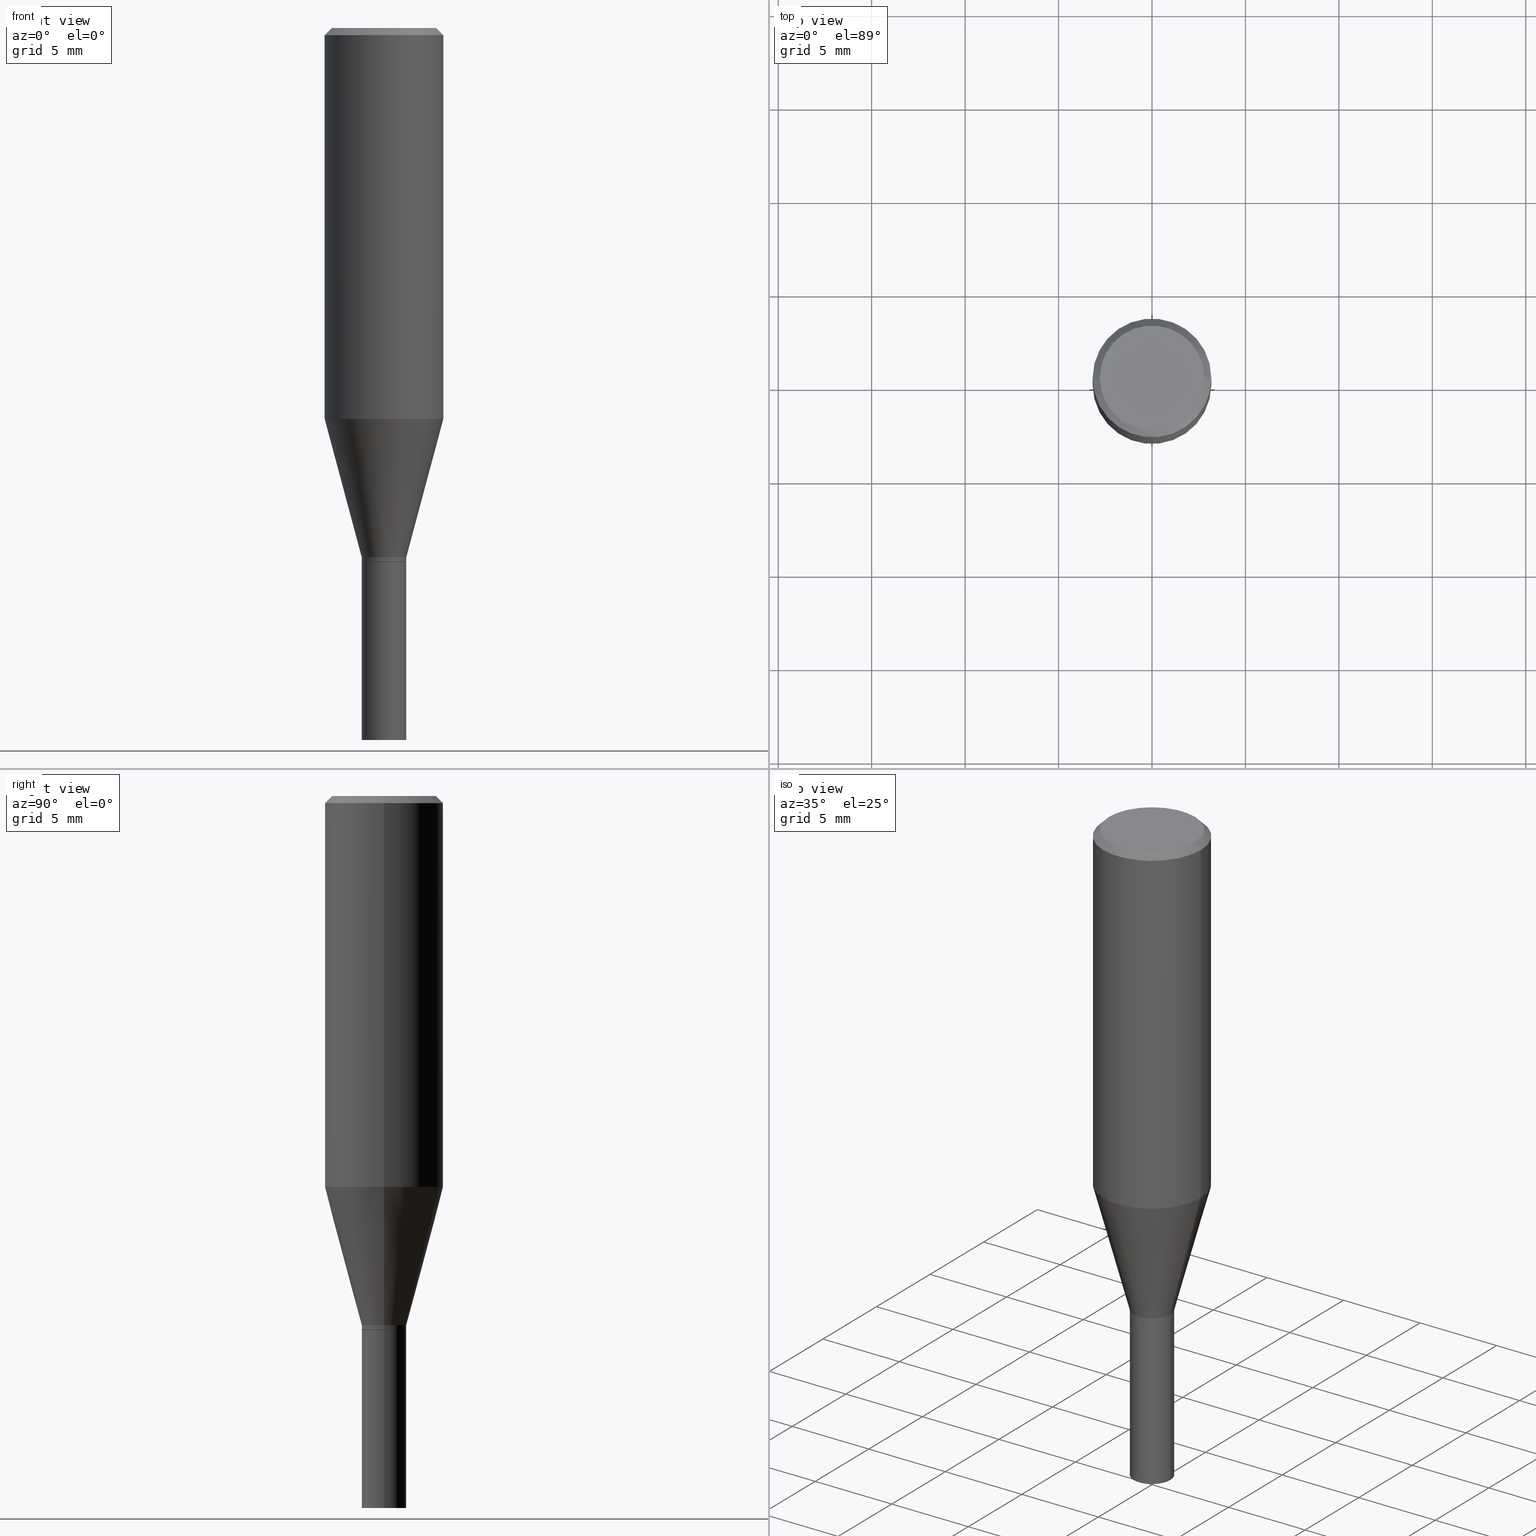
[diagram: canonical four-view strip — front | top / right | iso, engineering-drawing reading convention]
A machine part, canonical four-view strip (front | top / right | iso — engineering-drawing reading convention). The complete STEP part file that produces these views, byte-faithful:
ISO-10303-21;
HEADER;
FILE_DESCRIPTION (( 'STEP AP203' ),
    '1' );
FILE_NAME ('05298.STEP',
    '2024-03-14T18:06:03',
    ( '' ),
    ( '' ),
    'SwSTEP 2.0',
    'SolidWorks 2023',
    '' );
FILE_SCHEMA (( 'CONFIG_CONTROL_DESIGN' ));
ENDSEC;

DATA;
#1 = LINE ( 'NONE', #287, #114 ) ;
#2 = CYLINDRICAL_SURFACE ( 'NONE', #359, 0.1250000000000000000 ) ;
#3 = COORDINATED_UNIVERSAL_TIME_OFFSET ( 5, 0, .BEHIND. ) ;
#4 = CARTESIAN_POINT ( 'NONE',  ( -0.1249999999999999861, -1.987150146016147440E-15, -0.8235268319288721051 ) ) ;
#5 = CIRCLE ( 'NONE', #179, 0.1250000000000000000 ) ;
#6 = EDGE_CURVE ( 'NONE', #79, #215, #272, .T. ) ;
#7 = CARTESIAN_POINT ( 'NONE',  ( 2.751152406958279232E-29, -3.927916506198539224E-15, -1.125000000000000222 ) ) ;
#8 = EDGE_CURVE ( 'NONE', #34, #416, #454, .T. ) ;
#9 = DIRECTION ( 'NONE',  ( 1.000000000000000000, -6.982962677686266711E-15, 0.000000000000000000 ) ) ;
#10 = PERSON ( 'UNSPECIFIED', 'UNSPECIFIED', 'UNSPECIFIED', ('UNSPECIFIED'), ('UNSPECIFIED'), ('UNSPECIFIED') ) ;
#11 = DIRECTION ( 'NONE',  ( 1.000000000000000000, -6.982962677686266711E-15, 0.000000000000000000 ) ) ;
#12 = DESIGN_CONTEXT ( 'detailed design', #158, 'design' ) ;
#13 = CIRCLE ( 'NONE', #288, 0.1100000000000000006 ) ;
#14 = VERTEX_POINT ( 'NONE', #205 ) ;
#15 = ADVANCED_FACE ( 'NONE', ( #234 ), #153, .T. ) ;
#16 = AXIS2_PLACEMENT_3D ( 'NONE', #169, #165, #236 ) ;
#17 = CARTESIAN_POINT ( 'NONE',  ( 0.000000000000000000, 0.000000000000000000, 0.000000000000000000 ) ) ;
#18 = CARTESIAN_POINT ( 'NONE',  ( 0.1249999999999999861, -3.748198900427056011E-15, -0.8235268319288721051 ) ) ;
#19 = DIRECTION ( 'NONE',  ( -2.445468806185136597E-29, 3.491481338843145583E-15, 1.000000000000000000 ) ) ;
#20 = DIRECTION ( 'NONE',  ( -1.000000000000000000, 6.982962677686265922E-15, -4.876176775795935793E-29 ) ) ;
#21 = CARTESIAN_POINT ( 'NONE',  ( -0.04690000000000005276, 3.332445430714873620E-16, -2.306980557329553054E-30 ) ) ;
#22 = CARTESIAN_POINT ( 'NONE',  ( 2.751152406958279232E-29, -3.927916506198539224E-15, -1.125000000000000222 ) ) ;
#23 = ORIENTED_EDGE ( 'NONE', *, *, #333, .F. ) ;
#24 = ORIENTED_EDGE ( 'NONE', *, *, #262, .T. ) ;
#25 = AXIS2_PLACEMENT_3D ( 'NONE', #94, #60, #309 ) ;
#26 = CARTESIAN_POINT ( 'NONE',  ( -0.04639999999999999680, -3.595575449631741560E-15, -1.125000000000000222 ) ) ;
#27 = DIRECTION ( 'NONE',  ( 1.000000000000000000, -6.982962677686268288E-15, 0.000000000000000000 ) ) ;
#28 = FACE_OUTER_BOUND ( 'NONE', #267, .T. ) ;
#29 = DIRECTION ( 'NONE',  ( -2.445468806185136597E-29, 3.491481338843145583E-15, 1.000000000000000000 ) ) ;
#30 = EDGE_CURVE ( 'NONE', #416, #337, #449, .T. ) ;
#31 = VECTOR ( 'NONE', #128, 39.37007874015748143 ) ;
#32 = DIRECTION ( 'NONE',  ( -0.2588190451025215166, 5.211531920934551042E-15, 0.9659258262890679791 ) ) ;
#33 = EDGE_CURVE ( 'NONE', #459, #207, #13, .T. ) ;
#34 = VERTEX_POINT ( 'NONE', #26 ) ;
#35 = APPLICATION_PROTOCOL_DEFINITION ( 'international standard', 'config_control_design', 1994, #378 ) ;
#36 = APPROVAL_DATE_TIME ( #393, #51 ) ;
#37 = ORIENTED_EDGE ( 'NONE', *, *, #260, .T. ) ;
#38 = ORIENTED_EDGE ( 'NONE', *, *, #375, .T. ) ;
#39 = VECTOR ( 'NONE', #130, 39.37007874015748143 ) ;
#40 = APPROVAL_ROLE ( '' ) ;
#41 = CARTESIAN_POINT ( 'NONE',  ( 0.000000000000000000, 0.000000000000000000, 0.000000000000000000 ) ) ;
#42 = COORDINATED_UNIVERSAL_TIME_OFFSET ( 5, 0, .BEHIND. ) ;
#43 = CARTESIAN_POINT ( 'NONE',  ( 7.681258945454893776E-16, 0.1100000000000000006, -1.545800150669300521E-16 ) ) ;
#44 = CALENDAR_DATE ( 2024, 14, 3 ) ;
#45 = AXIS2_PLACEMENT_3D ( 'NONE', #134, #392, #77 ) ;
#46 =( GEOMETRIC_REPRESENTATION_CONTEXT ( 3 ) GLOBAL_UNCERTAINTY_ASSIGNED_CONTEXT ( ( #104 ) ) GLOBAL_UNIT_ASSIGNED_CONTEXT ( ( #417, #135, #211 ) ) REPRESENTATION_CONTEXT ( 'NONE', 'WORKASPACE' ) );
#47 = DIRECTION ( 'NONE',  ( -0.7071067811865656694, 7.493145998870420424E-15, 0.7071067811865294761 ) ) ;
#48 = ORIENTED_EDGE ( 'NONE', *, *, #136, .F. ) ;
#49 = EDGE_CURVE ( 'NONE', #34, #362, #1, .T. ) ;
#50 = DIRECTION ( 'NONE',  ( 1.000000000000000000, -6.982962677686265922E-15, 4.876176775795935793E-29 ) ) ;
#51 = APPROVAL ( #427, 'UNSPECIFIED' ) ;
#52 = DIRECTION ( 'NONE',  ( -2.445468806185136597E-29, 3.491481338843145583E-15, 1.000000000000000000 ) ) ;
#53 = DIRECTION ( 'NONE',  ( 1.000000000000000000, -6.982962677686266711E-15, 0.000000000000000000 ) ) ;
#54 = AXIS2_PLACEMENT_3D ( 'NONE', #152, #341, #259 ) ;
#55 = FACE_OUTER_BOUND ( 'NONE', #432, .T. ) ;
#56 = EDGE_CURVE ( 'NONE', #301, #412, #255, .T. ) ;
#57 = CARTESIAN_POINT ( 'NONE',  ( 0.04639999999999999680, -4.251925974443182119E-15, -1.125000000000000222 ) ) ;
#58 = LINE ( 'NONE', #385, #360 ) ;
#59 = ORIENTED_EDGE ( 'NONE', *, *, #49, .T. ) ;
#60 = DIRECTION ( 'NONE',  ( -2.438088387897960049E-29, 3.491481338843145188E-15, 1.000000000000000000 ) ) ;
#61 = CARTESIAN_POINT ( 'NONE',  ( -0.1250000000000000000, 8.881784197001252323E-16, -6.148668862818632227E-30 ) ) ;
#62 = APPROVAL_PERSON_ORGANIZATION ( #107, #418, #314 ) ;
#63 = CC_DESIGN_APPROVAL ( #464, ( #88 ) ) ;
#64 = CARTESIAN_POINT ( 'NONE',  ( 0.04689999999999999725, -4.255417455782025127E-15, -1.125000000000000222 ) ) ;
#65 = CARTESIAN_POINT ( 'NONE',  ( 0.000000000000000000, 0.000000000000000000, 0.000000000000000000 ) ) ;
#66 = ORIENTED_EDGE ( 'NONE', *, *, #196, .T. ) ;
#67 = EDGE_CURVE ( 'NONE', #466, #210, #80, .T. ) ;
#68 = ORIENTED_EDGE ( 'NONE', *, *, #136, .T. ) ;
#69 = AXIS2_PLACEMENT_3D ( 'NONE', #156, #409, #154 ) ;
#70 = DATE_TIME_ROLE ( 'classification_date' ) ;
#71 = ORIENTED_EDGE ( 'NONE', *, *, #244, .F. ) ;
#72 = EDGE_CURVE ( 'NONE', #301, #466, #253, .T. ) ;
#73 = ADVANCED_FACE ( 'NONE', ( #331 ), #246, .T. ) ;
#74 = PERSON_AND_ORGANIZATION ( #10, #167 ) ;
#75 = APPROVAL_STATUS ( 'not_yet_approved' ) ;
#76 = AXIS2_PLACEMENT_3D ( 'NONE', #414, #170, #168 ) ;
#77 = DIRECTION ( 'NONE',  ( 1.000000000000000000, -6.982962677686266711E-15, 0.000000000000000000 ) ) ;
#78 = DATE_TIME_ROLE ( 'creation_date' ) ;
#79 = VERTEX_POINT ( 'NONE', #4 ) ;
#80 = LINE ( 'NONE', #222, #166 ) ;
#81 = ORIENTED_EDGE ( 'NONE', *, *, #119, .F. ) ;
#82 = AXIS2_PLACEMENT_3D ( 'NONE', #297, #358, #93 ) ;
#83 = CIRCLE ( 'NONE', #76, 0.04690000000000005970 ) ;
#84 = PLANE ( 'NONE',  #212 ) ;
#85 = ORIENTED_EDGE ( 'NONE', *, *, #354, .F. ) ;
#86 = CARTESIAN_POINT ( 'NONE',  ( 3.668203209277705088E-31, -5.237222008264718399E-17, -0.01499999999999999944 ) ) ;
#87 = LINE ( 'NONE', #295, #311 ) ;
#88 = PRODUCT_DEFINITION ( 'UNKNOWN', '', #294, #12 ) ;
#89 = CIRCLE ( 'NONE', #115, 0.1100000000000000006 ) ;
#90 = DIRECTION ( 'NONE',  ( -2.445468806185136597E-29, 3.491481338843145583E-15, 1.000000000000000000 ) ) ;
#91 = ORIENTED_EDGE ( 'NONE', *, *, #140, .F. ) ;
#92 = ORIENTED_EDGE ( 'NONE', *, *, #196, .F. ) ;
#93 = DIRECTION ( 'NONE',  ( 1.000000000000000000, -6.982962677686266711E-15, 0.000000000000000000 ) ) ;
#94 = CARTESIAN_POINT ( 'NONE',  ( 2.751152406958279232E-29, -3.927916506198539224E-15, -1.125000000000000222 ) ) ;
#95 = VERTEX_POINT ( 'NONE', #429 ) ;
#96 = DIRECTION ( 'NONE',  ( -2.445468806185136877E-29, 3.491481338843145188E-15, 1.000000000000000000 ) ) ;
#97 = CONICAL_SURFACE ( 'NONE', #129, 0.04639999999999999680, 0.7853981633974739252 ) ;
#98 = LOCAL_TIME ( 14, 6, 3.000000000000000000, #42 ) ;
#99 = ORIENTED_EDGE ( 'NONE', *, *, #140, .T. ) ;
#100 = CARTESIAN_POINT ( 'NONE',  ( 0.04690000000000005276, -4.220502642393594266E-15, -1.115000000000000213 ) ) ;
#101 = ORIENTED_EDGE ( 'NONE', *, *, #67, .T. ) ;
#102 = DIRECTION ( 'NONE',  ( -2.445468806185136597E-29, 3.491481338843145583E-15, 1.000000000000000000 ) ) ;
#103 = DATE_AND_TIME ( #326, #98 ) ;
#104 = UNCERTAINTY_MEASURE_WITH_UNIT (LENGTH_MEASURE( 1.000000000000000082E-05 ), #417, 'distance_accuracy_value', 'NONE');
#105 = ADVANCED_FACE ( 'NONE', ( #404 ), #97, .T. ) ;
#106 = CONICAL_SURFACE ( 'NONE', #425, 0.04690000000000005276, 0.2617993877991502405 ) ;
#107 = PERSON_AND_ORGANIZATION ( #10, #167 ) ;
#108 = VERTEX_POINT ( 'NONE', #220 ) ;
#109 = APPROVAL_ROLE ( '' ) ;
#110 = ORIENTED_EDGE ( 'NONE', *, *, #364, .T. ) ;
#111 = ADVANCED_BREP_SHAPE_REPRESENTATION ( '05298', ( #422, #117, #304 ), #46 ) ;
#112 = ORIENTED_EDGE ( 'NONE', *, *, #6, .F. ) ;
#113 = CYLINDRICAL_SURFACE ( 'NONE', #399, 0.04690000000000005276 ) ;
#114 = VECTOR ( 'NONE', #47, 39.37007874015748143 ) ;
#115 = AXIS2_PLACEMENT_3D ( 'NONE', #448, #102, #133 ) ;
#116 = CARTESIAN_POINT ( 'NONE',  ( 3.668203209277705088E-31, -5.237222008264718399E-17, -0.01499999999999999944 ) ) ;
#117 = MANIFOLD_SOLID_BREP ( 'Body-Move/Copy2[2]', #433 ) ;
#118 = DIRECTION ( 'NONE',  ( 2.445468806185136597E-29, -3.491481338843145583E-15, -1.000000000000000000 ) ) ;
#119 = EDGE_CURVE ( 'NONE', #412, #210, #389, .T. ) ;
#120 = ORIENTED_EDGE ( 'NONE', *, *, #72, .T. ) ;
#121 = PRODUCT ( '05298', '05298', '', ( #214 ) ) ;
#122 = AXIS2_PLACEMENT_3D ( 'NONE', #116, #118, #328 ) ;
#123 = CARTESIAN_POINT ( 'NONE',  ( 0.04690000000000005970, -4.253671715112603623E-15, -1.124500000000000055 ) ) ;
#124 = CC_DESIGN_APPROVAL ( #418, ( #257 ) ) ;
#125 = CARTESIAN_POINT ( 'NONE',  ( 2.013909178538526665E-29, -2.875328565716272672E-15, -0.8235268319288721051 ) ) ;
#126 = ADVANCED_FACE ( 'NONE', ( #325 ), #2, .T. ) ;
#127 = DIRECTION ( 'NONE',  ( 1.000000000000000000, -6.982962677686269077E-15, 0.000000000000000000 ) ) ;
#128 = DIRECTION ( 'NONE',  ( -2.445468806185136877E-29, 3.491481338843145188E-15, 1.000000000000000000 ) ) ;
#129 = AXIS2_PLACEMENT_3D ( 'NONE', #376, #227, #53 ) ;
#130 = DIRECTION ( 'NONE',  ( 0.7071067811865656694, -2.468850131082446387E-15, 0.7071067811865294761 ) ) ;
#131 = CARTESIAN_POINT ( 'NONE',  ( 2.749929672555186430E-29, -3.926170765529117721E-15, -1.124500000000000055 ) ) ;
#132 = ORIENTED_EDGE ( 'NONE', *, *, #56, .F. ) ;
#133 = DIRECTION ( 'NONE',  ( 1.000000000000000000, -6.982962677686266711E-15, 4.852736867747365646E-29 ) ) ;
#134 = CARTESIAN_POINT ( 'NONE',  ( 2.751152406958279232E-29, -3.927916506198539224E-15, -1.125000000000000222 ) ) ;
#135 =( NAMED_UNIT ( * ) PLANE_ANGLE_UNIT ( ) SI_UNIT ( $, .RADIAN. ) );
#136 = EDGE_CURVE ( 'NONE', #79, #95, #411, .T. ) ;
#137 = ORIENTED_EDGE ( 'NONE', *, *, #457, .T. ) ;
#138 = EDGE_CURVE ( 'NONE', #362, #14, #306, .T. ) ;
#139 = FACE_OUTER_BOUND ( 'NONE', #421, .T. ) ;
#140 = EDGE_CURVE ( 'NONE', #210, #412, #221, .T. ) ;
#141 = DIRECTION ( 'NONE',  ( -2.445468806185136597E-29, 3.491481338843145583E-15, 1.000000000000000000 ) ) ;
#142 = CONICAL_SURFACE ( 'NONE', #69, 0.1250000000000000000, 0.7853981633974328469 ) ;
#143 = DATE_AND_TIME ( #44, #426 ) ;
#144 = CYLINDRICAL_SURFACE ( 'NONE', #266, 0.04690000000000005276 ) ;
#145 = COORDINATED_UNIVERSAL_TIME_OFFSET ( 5, 0, .BEHIND. ) ;
#146 = EDGE_CURVE ( 'NONE', #459, #95, #199, .T. ) ;
#147 = SECURITY_CLASSIFICATION_LEVEL ( 'unclassified' ) ;
#148 = AXIS2_PLACEMENT_3D ( 'NONE', #162, #300, #291 ) ;
#149 = ORIENTED_EDGE ( 'NONE', *, *, #138, .F. ) ;
#150 = EDGE_CURVE ( 'NONE', #416, #34, #316, .T. ) ;
#151 = PRODUCT_RELATED_PRODUCT_CATEGORY ( 'detail', '', ( #121 ) ) ;
#152 = CARTESIAN_POINT ( 'NONE',  ( 2.726697718896427687E-29, -3.893001692810108364E-15, -1.115000000000000213 ) ) ;
#153 = CONICAL_SURFACE ( 'NONE', #178, 0.04690000000000005276, 0.2617993877991502405 ) ;
#154 = DIRECTION ( 'NONE',  ( -1.000000000000000000, 6.982962677686266711E-15, 0.000000000000000000 ) ) ;
#155 = DIRECTION ( 'NONE',  ( -2.445468806185136597E-29, 3.491481338843145583E-15, 1.000000000000000000 ) ) ;
#156 = CARTESIAN_POINT ( 'NONE',  ( 3.668203209277705088E-31, -5.237222008264718399E-17, -0.01499999999999999944 ) ) ;
#157 = ORIENTED_EDGE ( 'NONE', *, *, #333, .T. ) ;
#158 = APPLICATION_CONTEXT ( 'configuration controlled 3d designs of mechanical parts and assemblies' ) ;
#159 = ADVANCED_FACE ( 'NONE', ( #437 ), #106, .T. ) ;
#160 = ADVANCED_FACE ( 'NONE', ( #397 ), #113, .T. ) ;
#161 = ORIENTED_EDGE ( 'NONE', *, *, #8, .F. ) ;
#162 = CARTESIAN_POINT ( 'NONE',  ( 3.668203209277704895E-29, -5.237222008264718177E-15, -1.500000000000000222 ) ) ;
#163 = CC_DESIGN_PERSON_AND_ORGANIZATION_ASSIGNMENT ( #219, #174, ( #294 ) ) ;
#164 = DIRECTION ( 'NONE',  ( 1.000000000000000000, -6.982962677686266711E-15, 4.876176775795935793E-29 ) ) ;
#165 = DIRECTION ( 'NONE',  ( -2.445468806185136597E-29, 3.491481338843145583E-15, 1.000000000000000000 ) ) ;
#166 = VECTOR ( 'NONE', #435, 39.37007874015748143 ) ;
#167 = ORGANIZATION ( 'UNSPECIFIED', 'UNSPECIFIED', '' ) ;
#168 = DIRECTION ( 'NONE',  ( 1.000000000000000000, -6.982962677686268288E-15, 0.000000000000000000 ) ) ;
#169 = CARTESIAN_POINT ( 'NONE',  ( 0.000000000000000000, 0.000000000000000000, 0.000000000000000000 ) ) ;
#170 = DIRECTION ( 'NONE',  ( -2.445468806185136597E-29, 3.491481338843145583E-15, 1.000000000000000000 ) ) ;
#171 = FACE_OUTER_BOUND ( 'NONE', #322, .T. ) ;
#172 = ORIENTED_EDGE ( 'NONE', *, *, #406, .F. ) ;
#173 = VERTEX_POINT ( 'NONE', #324 ) ;
#174 = PERSON_AND_ORGANIZATION_ROLE ( 'creator' ) ;
#175 = CALENDAR_DATE ( 2024, 14, 3 ) ;
#176 = ORIENTED_EDGE ( 'NONE', *, *, #406, .T. ) ;
#177 = ORIENTED_EDGE ( 'NONE', *, *, #232, .T. ) ;
#178 = AXIS2_PLACEMENT_3D ( 'NONE', #270, #413, #447 ) ;
#179 = AXIS2_PLACEMENT_3D ( 'NONE', #125, #52, #377 ) ;
#180 = APPROVAL_DATE_TIME ( #323, #418 ) ;
#181 = CARTESIAN_POINT ( 'NONE',  ( 0.04690000000000005276, -3.275009495834862475E-16, 2.286926907848296490E-30 ) ) ;
#182 = DIRECTION ( 'NONE',  ( -2.445468806185136877E-29, 3.491481338843145188E-15, 1.000000000000000000 ) ) ;
#183 = ORIENTED_EDGE ( 'NONE', *, *, #150, .F. ) ;
#184 = DIRECTION ( 'NONE',  ( 1.000000000000000000, -6.982962677686266711E-15, 0.000000000000000000 ) ) ;
#185 = CC_DESIGN_PERSON_AND_ORGANIZATION_ASSIGNMENT ( #74, #357, ( #257 ) ) ;
#186 = CARTESIAN_POINT ( 'NONE',  ( 3.576687321579069994E-29, -5.368277968210015545E-15, -1.500000000000000222 ) ) ;
#187 = ORIENTED_EDGE ( 'NONE', *, *, #56, .T. ) ;
#188 = DIRECTION ( 'NONE',  ( 0.000000000000000000, 0.000000000000000000, 1.000000000000000000 ) ) ;
#189 = AXIS2_PLACEMENT_3D ( 'NONE', #7, #330, #184 ) ;
#190 = CARTESIAN_POINT ( 'NONE',  ( 0.000000000000000000, 0.000000000000000000, 0.000000000000000000 ) ) ;
#191 = ORIENTED_EDGE ( 'NONE', *, *, #150, .T. ) ;
#192 = EDGE_LOOP ( 'NONE', ( #342, #110 ) ) ;
#193 = ADVANCED_FACE ( 'NONE', ( #402 ), #445, .T. ) ;
#194 = DIRECTION ( 'NONE',  ( 2.438088387897960049E-29, -3.491481338843145188E-15, -1.000000000000000000 ) ) ;
#195 = AXIS2_PLACEMENT_3D ( 'NONE', #65, #276, #202 ) ;
#196 = EDGE_CURVE ( 'NONE', #108, #95, #203, .T. ) ;
#197 = EDGE_LOOP ( 'NONE', ( #172, #442, #281, #112 ) ) ;
#198 = DIRECTION ( 'NONE',  ( 1.000000000000000000, -6.982962677686265922E-15, 4.876176775795935793E-29 ) ) ;
#199 = LINE ( 'NONE', #299, #446 ) ;
#200 = DIRECTION ( 'NONE',  ( 1.000000000000000000, -6.982962677686266711E-15, 4.852736867747365646E-29 ) ) ;
#201 = LENGTH_MEASURE_WITH_UNIT ( LENGTH_MEASURE( 0.02539999999999999897 ), #307 );
#202 = DIRECTION ( 'NONE',  ( 1.000000000000000000, -6.982962677686266711E-15, 4.876176775795935793E-29 ) ) ;
#203 = CIRCLE ( 'NONE', #455, 0.1250000000000000000 ) ;
#204 = VECTOR ( 'NONE', #240, 39.37007874015748143 ) ;
#205 = CARTESIAN_POINT ( 'NONE',  ( -0.04690000000000005276, -2.773453647877384221E-15, -1.115000000000000213 ) ) ;
#206 = LINE ( 'NONE', #346, #434 ) ;
#207 = VERTEX_POINT ( 'NONE', #226 ) ;
#208 = CARTESIAN_POINT ( 'NONE',  ( 0.04639999999999999680, -4.251925974443182119E-15, -1.125000000000000222 ) ) ;
#209 = ORIENTED_EDGE ( 'NONE', *, *, #138, .T. ) ;
#210 = VERTEX_POINT ( 'NONE', #361 ) ;
#211 =( NAMED_UNIT ( * ) SI_UNIT ( $, .STERADIAN. ) SOLID_ANGLE_UNIT ( ) );
#212 = AXIS2_PLACEMENT_3D ( 'NONE', #373, #278, #381 ) ;
#213 = COORDINATED_UNIVERSAL_TIME_OFFSET ( 5, 0, .BEHIND. ) ;
#214 = MECHANICAL_CONTEXT ( 'NONE', #378, 'mechanical' ) ;
#215 = VERTEX_POINT ( 'NONE', #18 ) ;
#216 = PERSON_AND_ORGANIZATION_ROLE ( 'design_supplier' ) ;
#217 = FACE_OUTER_BOUND ( 'NONE', #419, .T. ) ;
#218 = EDGE_LOOP ( 'NONE', ( #120, #101, #81, #132 ) ) ;
#219 = PERSON_AND_ORGANIZATION ( #10, #167 ) ;
#220 = CARTESIAN_POINT ( 'NONE',  ( 0.1250000000000000000, -9.252425547934304180E-16, -0.01499999999999999944 ) ) ;
#221 = CIRCLE ( 'NONE', #407, 0.04689999999999999725 ) ;
#222 = CARTESIAN_POINT ( 'NONE',  ( -0.04689999999999999725, 3.332445430714869676E-16, -2.306980557329550952E-30 ) ) ;
#223 = APPROVAL_PERSON_ORGANIZATION ( #245, #51, #109 ) ;
#224 = DIRECTION ( 'NONE',  ( -2.445468806185136597E-29, 3.491481338843145583E-15, 1.000000000000000000 ) ) ;
#225 = ORIENTED_EDGE ( 'NONE', *, *, #30, .T. ) ;
#226 = CARTESIAN_POINT ( 'NONE',  ( 0.1100000000000000006, -8.322946247794777961E-16, 4.589658644116375565E-16 ) ) ;
#227 = DIRECTION ( 'NONE',  ( -2.445468806185136597E-29, 3.491481338843145583E-15, 1.000000000000000000 ) ) ;
#228 = DIRECTION ( 'NONE',  ( 1.000000000000000000, -6.982962677686266711E-15, 0.000000000000000000 ) ) ;
#229 = AXIS2_PLACEMENT_3D ( 'NONE', #247, #141, #277 ) ;
#230 = DIRECTION ( 'NONE',  ( -2.445468806185136597E-29, 3.491481338843145583E-15, 1.000000000000000000 ) ) ;
#231 = EDGE_LOOP ( 'NONE', ( #345, #99 ) ) ;
#232 = EDGE_CURVE ( 'NONE', #337, #173, #443, .T. ) ;
#233 = ADVANCED_FACE ( 'NONE', ( #217 ), #144, .T. ) ;
#234 = FACE_OUTER_BOUND ( 'NONE', #197, .T. ) ;
#235 = CARTESIAN_POINT ( 'NONE',  ( 2.751152406958279232E-29, -3.927916506198539224E-15, -1.125000000000000222 ) ) ;
#236 = DIRECTION ( 'NONE',  ( 1.000000000000000000, -6.982962677686266711E-15, 4.876176775795936353E-29 ) ) ;
#237 = AXIS2_PLACEMENT_3D ( 'NONE', #235, #452, #352 ) ;
#238 = ORIENTED_EDGE ( 'NONE', *, *, #146, .F. ) ;
#239 = CC_DESIGN_PERSON_AND_ORGANIZATION_ASSIGNMENT ( #463, #460, ( #121 ) ) ;
#240 = DIRECTION ( 'NONE',  ( 0.2588190451025215166, 1.565188264969620784E-15, 0.9659258262890679791 ) ) ;
#241 = ORIENTED_EDGE ( 'NONE', *, *, #262, .F. ) ;
#242 = ADVANCED_FACE ( 'NONE', ( #365 ), #142, .T. ) ;
#243 = ORIENTED_EDGE ( 'NONE', *, *, #6, .T. ) ;
#244 = EDGE_CURVE ( 'NONE', #215, #108, #87, .T. ) ;
#245 = PERSON_AND_ORGANIZATION ( #10, #167 ) ;
#246 = CONICAL_SURFACE ( 'NONE', #122, 0.1250000000000000000, 0.7853981633974328469 ) ;
#247 = CARTESIAN_POINT ( 'NONE',  ( 2.013909178538526665E-29, -2.875328565716272672E-15, -0.8235268319288721051 ) ) ;
#248 = CIRCLE ( 'NONE', #369, 0.04690000000000005276 ) ;
#249 = CALENDAR_DATE ( 2024, 14, 3 ) ;
#250 = ORIENTED_EDGE ( 'NONE', *, *, #30, .F. ) ;
#251 = PERSON_AND_ORGANIZATION ( #10, #167 ) ;
#252 = DIRECTION ( 'NONE',  ( -2.445468806185136597E-29, 3.491481338843145583E-15, 1.000000000000000000 ) ) ;
#253 = CIRCLE ( 'NONE', #293, 0.04689999999999999725 ) ;
#254 = CIRCLE ( 'NONE', #329, 0.1250000000000000000 ) ;
#255 = LINE ( 'NONE', #318, #395 ) ;
#256 = CARTESIAN_POINT ( 'NONE',  ( 3.668203209277704895E-29, -5.237222008264718177E-15, -1.500000000000000222 ) ) ;
#257 = SECURITY_CLASSIFICATION ( '', '', #147 ) ;
#258 = CONICAL_SURFACE ( 'NONE', #237, 0.04639999999999999680, 0.7853981633974739252 ) ;
#259 = DIRECTION ( 'NONE',  ( 1.000000000000000000, -6.982962677686269077E-15, 0.000000000000000000 ) ) ;
#260 = EDGE_CURVE ( 'NONE', #95, #108, #254, .T. ) ;
#261 = CARTESIAN_POINT ( 'NONE',  ( 0.000000000000000000, 0.000000000000000000, 0.000000000000000000 ) ) ;
#262 = EDGE_CURVE ( 'NONE', #215, #79, #5, .T. ) ;
#263 = DIRECTION ( 'NONE',  ( -2.445468806185136597E-29, 3.491481338843145583E-15, 1.000000000000000000 ) ) ;
#264 = ORIENTED_EDGE ( 'NONE', *, *, #415, .F. ) ;
#265 = CARTESIAN_POINT ( 'NONE',  ( 2.726697718896427687E-29, -3.893001692810108364E-15, -1.115000000000000213 ) ) ;
#266 = AXIS2_PLACEMENT_3D ( 'NONE', #41, #263, #374 ) ;
#267 = EDGE_LOOP ( 'NONE', ( #48, #243, #308, #344 ) ) ;
#268 = DIRECTION ( 'NONE',  ( 1.000000000000000000, -6.982962677686269077E-15, 0.000000000000000000 ) ) ;
#269 = ORIENTED_EDGE ( 'NONE', *, *, #327, .F. ) ;
#270 = CARTESIAN_POINT ( 'NONE',  ( 2.726697718896427687E-29, -3.893001692810108364E-15, -1.115000000000000213 ) ) ;
#271 = CARTESIAN_POINT ( 'NONE',  ( 2.726697718896427687E-29, -3.893001692810108364E-15, -1.115000000000000213 ) ) ;
#272 = CIRCLE ( 'NONE', #229, 0.1250000000000000000 ) ;
#273 = AXIS2_PLACEMENT_3D ( 'NONE', #131, #29, #27 ) ;
#274 = ADVANCED_FACE ( 'NONE', ( #285 ), #465, .F. ) ;
#275 = ORIENTED_EDGE ( 'NONE', *, *, #457, .F. ) ;
#276 = DIRECTION ( 'NONE',  ( -2.445468806185136597E-29, 3.491481338843145583E-15, 1.000000000000000000 ) ) ;
#277 = DIRECTION ( 'NONE',  ( 1.000000000000000000, -6.982962677686266711E-15, 0.000000000000000000 ) ) ;
#278 = DIRECTION ( 'NONE',  ( 2.438088387897960049E-29, -3.491481338843145188E-15, -1.000000000000000000 ) ) ;
#279 = ORIENTED_EDGE ( 'NONE', *, *, #49, .F. ) ;
#280 = PERSON_AND_ORGANIZATION_ROLE ( 'creator' ) ;
#281 = ORIENTED_EDGE ( 'NONE', *, *, #354, .T. ) ;
#282 = CIRCLE ( 'NONE', #273, 0.04690000000000005970 ) ;
#283 = CC_DESIGN_DATE_AND_TIME_ASSIGNMENT ( #388, #78, ( #88 ) ) ;
#284 = APPROVAL_STATUS ( 'not_yet_approved' ) ;
#285 = FACE_OUTER_BOUND ( 'NONE', #192, .T. ) ;
#286 = SHAPE_DEFINITION_REPRESENTATION ( #321, #111 ) ;
#287 = CARTESIAN_POINT ( 'NONE',  ( -0.04639999999999999680, -3.598224676805852761E-15, -1.125000000000000222 ) ) ;
#288 = AXIS2_PLACEMENT_3D ( 'NONE', #380, #383, #200 ) ;
#289 = CIRCLE ( 'NONE', #54, 0.04690000000000005276 ) ;
#290 = ORIENTED_EDGE ( 'NONE', *, *, #67, .F. ) ;
#291 = DIRECTION ( 'NONE',  ( 1.000000000000000000, -6.982962677686256455E-15, 0.000000000000000000 ) ) ;
#292 = ORIENTED_EDGE ( 'NONE', *, *, #146, .T. ) ;
#293 = AXIS2_PLACEMENT_3D ( 'NONE', #256, #436, #372 ) ;
#294 = PRODUCT_DEFINITION_FORMATION_WITH_SPECIFIED_SOURCE ( 'ANY', '', #121, .NOT_KNOWN. ) ;
#295 = CARTESIAN_POINT ( 'NONE',  ( 0.1250000000000000000, -8.728703347107833388E-16, 6.095220969744919741E-30 ) ) ;
#296 = ORIENTED_EDGE ( 'NONE', *, *, #370, .F. ) ;
#297 = CARTESIAN_POINT ( 'NONE',  ( 2.751152406958279232E-29, -3.927916506198539224E-15, -1.125000000000000222 ) ) ;
#298 = CARTESIAN_POINT ( 'NONE',  ( 0.04689999999999999725, -5.564722957848204079E-15, -1.500000000000000222 ) ) ;
#299 = CARTESIAN_POINT ( 'NONE',  ( -0.1250000000000000000, 8.204981146281362596E-16, -0.01499999999999999944 ) ) ;
#300 = DIRECTION ( 'NONE',  ( -2.445468806185136597E-29, 3.491481338843145583E-15, 1.000000000000000000 ) ) ;
#301 = VERTEX_POINT ( 'NONE', #298 ) ;
#302 = DIRECTION ( 'NONE',  ( -2.445468806185136877E-29, 3.491481338843145188E-15, 1.000000000000000000 ) ) ;
#303 = CARTESIAN_POINT ( 'NONE',  ( -0.04690000000000005970, -3.592926222457630359E-15, -1.124500000000000055 ) ) ;
#304 = AXIS2_PLACEMENT_3D ( 'NONE', #363, #188, #394 ) ;
#305 = CARTESIAN_POINT ( 'NONE',  ( -0.1100000000000000006, 7.943120045868136075E-16, 4.589658644116265124E-16 ) ) ;
#306 = LINE ( 'NONE', #21, #461 ) ;
#307 =( LENGTH_UNIT ( ) NAMED_UNIT ( * ) SI_UNIT ( $, .METRE. ) );
#308 = ORIENTED_EDGE ( 'NONE', *, *, #244, .T. ) ;
#309 = DIRECTION ( 'NONE',  ( 1.000000000000000000, -6.982962677686265922E-15, 4.876176775795935793E-29 ) ) ;
#310 = ADVANCED_FACE ( 'NONE', ( #55 ), #339, .F. ) ;
#311 = VECTOR ( 'NONE', #441, 39.37007874015748143 ) ;
#312 = PLANE ( 'NONE',  #25 ) ;
#313 = ORIENTED_EDGE ( 'NONE', *, *, #375, .F. ) ;
#314 = APPROVAL_ROLE ( '' ) ;
#315 = APPROVAL_DATE_TIME ( #143, #464 ) ;
#316 = CIRCLE ( 'NONE', #45, 0.04639999999999999680 ) ;
#317 = LOCAL_TIME ( 14, 6, 3.000000000000000000, #145 ) ;
#318 = CARTESIAN_POINT ( 'NONE',  ( 0.04689999999999999725, -3.275009495834859024E-16, 2.286926907848294038E-30 ) ) ;
#319 = PERSON_AND_ORGANIZATION ( #10, #167 ) ;
#320 = CARTESIAN_POINT ( 'NONE',  ( 3.668203209277705088E-31, -5.237222008264718399E-17, -0.01499999999999999944 ) ) ;
#321 = PRODUCT_DEFINITION_SHAPE ( 'NONE', 'NONE',  #88 ) ;
#322 = EDGE_LOOP ( 'NONE', ( #183, #161 ) ) ;
#323 = DATE_AND_TIME ( #356, #317 ) ;
#324 = CARTESIAN_POINT ( 'NONE',  ( 0.04690000000000005276, -4.220502642393594266E-15, -1.115000000000000213 ) ) ;
#325 = FACE_OUTER_BOUND ( 'NONE', #332, .T. ) ;
#326 = CALENDAR_DATE ( 2024, 14, 3 ) ;
#327 = EDGE_CURVE ( 'NONE', #14, #173, #289, .T. ) ;
#328 = DIRECTION ( 'NONE',  ( -1.000000000000000000, 6.982962677686266711E-15, 0.000000000000000000 ) ) ;
#329 = AXIS2_PLACEMENT_3D ( 'NONE', #320, #224, #9 ) ;
#330 = DIRECTION ( 'NONE',  ( -2.445468806185136597E-29, 3.491481338843145583E-15, 1.000000000000000000 ) ) ;
#331 = FACE_OUTER_BOUND ( 'NONE', #355, .T. ) ;
#332 = EDGE_LOOP ( 'NONE', ( #24, #68, #92, #71 ) ) ;
#333 = EDGE_CURVE ( 'NONE', #466, #301, #338, .T. ) ;
#334 = ORIENTED_EDGE ( 'NONE', *, *, #232, .F. ) ;
#335 = ORIENTED_EDGE ( 'NONE', *, *, #72, .F. ) ;
#336 = DIRECTION ( 'NONE',  ( -2.445468806185136597E-29, 3.491481338843145583E-15, 1.000000000000000000 ) ) ;
#337 = VERTEX_POINT ( 'NONE', #123 ) ;
#338 = CIRCLE ( 'NONE', #148, 0.04689999999999999725 ) ;
#339 = PLANE ( 'NONE',  #390 ) ;
#340 = EDGE_LOOP ( 'NONE', ( #279, #438, #225, #264 ) ) ;
#341 = DIRECTION ( 'NONE',  ( -2.445468806185136597E-29, 3.491481338843145583E-15, 1.000000000000000000 ) ) ;
#342 = ORIENTED_EDGE ( 'NONE', *, *, #33, .T. ) ;
#343 = ADVANCED_FACE ( 'NONE', ( #401 ), #84, .F. ) ;
#344 = ORIENTED_EDGE ( 'NONE', *, *, #260, .F. ) ;
#345 = ORIENTED_EDGE ( 'NONE', *, *, #119, .T. ) ;
#346 = CARTESIAN_POINT ( 'NONE',  ( 0.1250000000000000000, -9.099344698040885245E-16, -0.01499999999999999944 ) ) ;
#347 = LOCAL_TIME ( 14, 6, 3.000000000000000000, #428 ) ;
#348 = CYLINDRICAL_SURFACE ( 'NONE', #16, 0.04689999999999999725 ) ;
#349 = ADVANCED_FACE ( 'NONE', ( #386 ), #258, .T. ) ;
#350 = CC_DESIGN_DATE_AND_TIME_ASSIGNMENT ( #103, #70, ( #257 ) ) ;
#351 = LINE ( 'NONE', #100, #204 ) ;
#352 = DIRECTION ( 'NONE',  ( 1.000000000000000000, -6.982962677686266711E-15, 0.000000000000000000 ) ) ;
#353 = VECTOR ( 'NONE', #96, 39.37007874015748143 ) ;
#354 = EDGE_CURVE ( 'NONE', #173, #215, #351, .T. ) ;
#355 = EDGE_LOOP ( 'NONE', ( #275, #384, #292, #37 ) ) ;
#356 = CALENDAR_DATE ( 2024, 14, 3 ) ;
#357 = PERSON_AND_ORGANIZATION_ROLE ( 'classification_officer' ) ;
#358 = DIRECTION ( 'NONE',  ( -2.445468806185136597E-29, 3.491481338843145583E-15, 1.000000000000000000 ) ) ;
#359 = AXIS2_PLACEMENT_3D ( 'NONE', #17, #155, #164 ) ;
#360 = VECTOR ( 'NONE', #32, 39.37007874015748143 ) ;
#361 = CARTESIAN_POINT ( 'NONE',  ( -0.04689999999999999725, -4.249324714160141733E-15, -1.125000000000000222 ) ) ;
#362 = VERTEX_POINT ( 'NONE', #303 ) ;
#363 = CARTESIAN_POINT ( 'NONE',  ( 0.000000000000000000, 0.000000000000000000, 0.000000000000000000 ) ) ;
#364 = EDGE_CURVE ( 'NONE', #207, #459, #89, .T. ) ;
#365 = FACE_OUTER_BOUND ( 'NONE', #453, .T. ) ;
#366 = PERSON_AND_ORGANIZATION ( #10, #167 ) ;
#367 = ORIENTED_EDGE ( 'NONE', *, *, #415, .T. ) ;
#368 = CLOSED_SHELL ( 'NONE', ( #193, #310, #444, #343 ) ) ;
#369 = AXIS2_PLACEMENT_3D ( 'NONE', #271, #456, #268 ) ;
#370 = EDGE_CURVE ( 'NONE', #337, #362, #282, .T. ) ;
#371 = ADVANCED_FACE ( 'NONE', ( #28 ), #379, .T. ) ;
#372 = DIRECTION ( 'NONE',  ( 1.000000000000000000, -6.982962677686256455E-15, 0.000000000000000000 ) ) ;
#373 = CARTESIAN_POINT ( 'NONE',  ( 3.275009495835134632E-16, 0.04689999999999607677, -1.125000000000000222 ) ) ;
#374 = DIRECTION ( 'NONE',  ( 1.000000000000000000, -6.982962677686265922E-15, 4.876176775795935793E-29 ) ) ;
#375 = EDGE_CURVE ( 'NONE', #173, #14, #248, .T. ) ;
#376 = CARTESIAN_POINT ( 'NONE',  ( 2.751152406958279232E-29, -3.927916506198539224E-15, -1.125000000000000222 ) ) ;
#377 = DIRECTION ( 'NONE',  ( 1.000000000000000000, -6.982962677686266711E-15, 0.000000000000000000 ) ) ;
#378 = APPLICATION_CONTEXT ( 'configuration controlled 3d designs of mechanical parts and assemblies' ) ;
#379 = CYLINDRICAL_SURFACE ( 'NONE', #195, 0.1250000000000000000 ) ;
#380 = CARTESIAN_POINT ( 'NONE',  ( -1.122386704522442906E-44, 1.602470750759226619E-30, 4.589658644116320345E-16 ) ) ;
#381 = DIRECTION ( 'NONE',  ( -1.000000000000000000, 6.982962677686265922E-15, -4.876176775795935793E-29 ) ) ;
#382 = CC_DESIGN_SECURITY_CLASSIFICATION ( #257, ( #294 ) ) ;
#383 = DIRECTION ( 'NONE',  ( -2.445468806185136597E-29, 3.491481338843145583E-15, 1.000000000000000000 ) ) ;
#384 = ORIENTED_EDGE ( 'NONE', *, *, #33, .F. ) ;
#385 = CARTESIAN_POINT ( 'NONE',  ( -0.04690000000000005276, -3.559757149738621002E-15, -1.115000000000000213 ) ) ;
#386 = FACE_OUTER_BOUND ( 'NONE', #340, .T. ) ;
#387 = ORIENTED_EDGE ( 'NONE', *, *, #364, .F. ) ;
#388 = DATE_AND_TIME ( #175, #396 ) ;
#389 = CIRCLE ( 'NONE', #189, 0.04689999999999999725 ) ;
#390 = AXIS2_PLACEMENT_3D ( 'NONE', #186, #431, #198 ) ;
#391 = EDGE_LOOP ( 'NONE', ( #38, #176, #241, #85 ) ) ;
#392 = DIRECTION ( 'NONE',  ( -2.445468806185136597E-29, 3.491481338843145583E-15, 1.000000000000000000 ) ) ;
#393 = DATE_AND_TIME ( #249, #347 ) ;
#394 = DIRECTION ( 'NONE',  ( 1.000000000000000000, 0.000000000000000000, 0.000000000000000000 ) ) ;
#395 = VECTOR ( 'NONE', #182, 39.37007874015748143 ) ;
#396 = LOCAL_TIME ( 14, 6, 3.000000000000000000, #3 ) ;
#397 = FACE_OUTER_BOUND ( 'NONE', #403, .T. ) ;
#398 = APPLICATION_PROTOCOL_DEFINITION ( 'international standard', 'config_control_design', 1994, #158 ) ;
#399 = AXIS2_PLACEMENT_3D ( 'NONE', #261, #90, #50 ) ;
#400 = APPROVAL_PERSON_ORGANIZATION ( #366, #464, #40 ) ;
#401 = FACE_OUTER_BOUND ( 'NONE', #231, .T. ) ;
#402 = FACE_OUTER_BOUND ( 'NONE', #218, .T. ) ;
#403 = EDGE_LOOP ( 'NONE', ( #410, #209, #313, #334 ) ) ;
#404 = FACE_OUTER_BOUND ( 'NONE', #424, .T. ) ;
#405 = DIRECTION ( 'NONE',  ( 1.000000000000000000, -6.982962677686266711E-15, 4.876176775795936353E-29 ) ) ;
#406 = EDGE_CURVE ( 'NONE', #14, #79, #58, .T. ) ;
#407 = AXIS2_PLACEMENT_3D ( 'NONE', #22, #19, #228 ) ;
#408 = CC_DESIGN_PERSON_AND_ORGANIZATION_ASSIGNMENT ( #319, #280, ( #88 ) ) ;
#409 = DIRECTION ( 'NONE',  ( 2.445468806185136597E-29, -3.491481338843145583E-15, -1.000000000000000000 ) ) ;
#410 = ORIENTED_EDGE ( 'NONE', *, *, #370, .T. ) ;
#411 = LINE ( 'NONE', #61, #353 ) ;
#412 = VERTEX_POINT ( 'NONE', #64 ) ;
#413 = DIRECTION ( 'NONE',  ( -2.445468806185136597E-29, 3.491481338843145583E-15, 1.000000000000000000 ) ) ;
#414 = CARTESIAN_POINT ( 'NONE',  ( 2.749929672555186430E-29, -3.926170765529117721E-15, -1.124500000000000055 ) ) ;
#415 = EDGE_CURVE ( 'NONE', #362, #337, #83, .T. ) ;
#416 = VERTEX_POINT ( 'NONE', #208 ) ;
#417 =( CONVERSION_BASED_UNIT ( 'INCH', #201 ) LENGTH_UNIT ( ) NAMED_UNIT ( #439 ) );
#418 = APPROVAL ( #75, 'UNSPECIFIED' ) ;
#419 = EDGE_LOOP ( 'NONE', ( #149, #367, #177, #269 ) ) ;
#420 = AXIS2_PLACEMENT_3D ( 'NONE', #190, #252, #405 ) ;
#421 = EDGE_LOOP ( 'NONE', ( #290, #157, #187, #91 ) ) ;
#422 = MANIFOLD_SOLID_BREP ( 'Body-Move/Copy2[1]', #368 ) ;
#423 = ADVANCED_FACE ( 'NONE', ( #171 ), #312, .F. ) ;
#424 = EDGE_LOOP ( 'NONE', ( #191, #59, #296, #250 ) ) ;
#425 = AXIS2_PLACEMENT_3D ( 'NONE', #265, #230, #127 ) ;
#426 = LOCAL_TIME ( 14, 6, 3.000000000000000000, #213 ) ;
#427 = APPROVAL_STATUS ( 'not_yet_approved' ) ;
#428 = COORDINATED_UNIVERSAL_TIME_OFFSET ( 5, 0, .BEHIND. ) ;
#429 = CARTESIAN_POINT ( 'NONE',  ( -0.1250000000000000000, -5.756719731993345446E-16, -0.01499999999999999944 ) ) ;
#430 = CC_DESIGN_PERSON_AND_ORGANIZATION_ASSIGNMENT ( #251, #216, ( #294 ) ) ;
#431 = DIRECTION ( 'NONE',  ( -2.438088387897960049E-29, 3.491481338843145188E-15, 1.000000000000000000 ) ) ;
#432 = EDGE_LOOP ( 'NONE', ( #335, #23 ) ) ;
#433 = CLOSED_SHELL ( 'NONE', ( #160, #105, #242, #126, #159, #15, #371, #73, #274, #423, #349, #233 ) ) ;
#434 = VECTOR ( 'NONE', #458, 39.37007874015748143 ) ;
#435 = DIRECTION ( 'NONE',  ( -2.445468806185136877E-29, 3.491481338843145188E-15, 1.000000000000000000 ) ) ;
#436 = DIRECTION ( 'NONE',  ( -2.445468806185136597E-29, 3.491481338843145583E-15, 1.000000000000000000 ) ) ;
#437 = FACE_OUTER_BOUND ( 'NONE', #391, .T. ) ;
#438 = ORIENTED_EDGE ( 'NONE', *, *, #8, .T. ) ;
#439 = DIMENSIONAL_EXPONENTS ( 1.000000000000000000, 0.000000000000000000, 0.000000000000000000, 0.000000000000000000, 0.000000000000000000, 0.000000000000000000, 0.000000000000000000 ) ;
#440 = AXIS2_PLACEMENT_3D ( 'NONE', #43, #194, #20 ) ;
#441 = DIRECTION ( 'NONE',  ( -2.445468806185136877E-29, 3.491481338843145188E-15, 1.000000000000000000 ) ) ;
#442 = ORIENTED_EDGE ( 'NONE', *, *, #327, .T. ) ;
#443 = LINE ( 'NONE', #181, #31 ) ;
#444 = ADVANCED_FACE ( 'NONE', ( #139 ), #348, .T. ) ;
#445 = CYLINDRICAL_SURFACE ( 'NONE', #420, 0.04689999999999999725 ) ;
#446 = VECTOR ( 'NONE', #451, 39.37007874015748143 ) ;
#447 = DIRECTION ( 'NONE',  ( 1.000000000000000000, -6.982962677686269077E-15, 0.000000000000000000 ) ) ;
#448 = CARTESIAN_POINT ( 'NONE',  ( -1.122386704522442906E-44, 1.602470750759226619E-30, 4.589658644116320345E-16 ) ) ;
#449 = LINE ( 'NONE', #57, #39 ) ;
#450 = CARTESIAN_POINT ( 'NONE',  ( -0.04689999999999999725, -4.249324714160141733E-15, -1.500000000000000222 ) ) ;
#451 = DIRECTION ( 'NONE',  ( -0.7071067811865365815, 2.468850131082142676E-15, -0.7071067811865584529 ) ) ;
#452 = DIRECTION ( 'NONE',  ( -2.445468806185136597E-29, 3.491481338843145583E-15, 1.000000000000000000 ) ) ;
#453 = EDGE_LOOP ( 'NONE', ( #387, #137, #66, #238 ) ) ;
#454 = CIRCLE ( 'NONE', #82, 0.04639999999999999680 ) ;
#455 = AXIS2_PLACEMENT_3D ( 'NONE', #86, #336, #11 ) ;
#456 = DIRECTION ( 'NONE',  ( -2.445468806185136597E-29, 3.491481338843145583E-15, 1.000000000000000000 ) ) ;
#457 = EDGE_CURVE ( 'NONE', #207, #108, #206, .T. ) ;
#458 = DIRECTION ( 'NONE',  ( 0.7071067811865365815, -7.319954787623219758E-15, -0.7071067811865584529 ) ) ;
#459 = VERTEX_POINT ( 'NONE', #305 ) ;
#460 = PERSON_AND_ORGANIZATION_ROLE ( 'design_owner' ) ;
#461 = VECTOR ( 'NONE', #302, 39.37007874015748143 ) ;
#462 = CC_DESIGN_APPROVAL ( #51, ( #294 ) ) ;
#463 = PERSON_AND_ORGANIZATION ( #10, #167 ) ;
#464 = APPROVAL ( #284, 'UNSPECIFIED' ) ;
#465 = PLANE ( 'NONE',  #440 ) ;
#466 = VERTEX_POINT ( 'NONE', #450 ) ;
ENDSEC;
END-ISO-10303-21;
